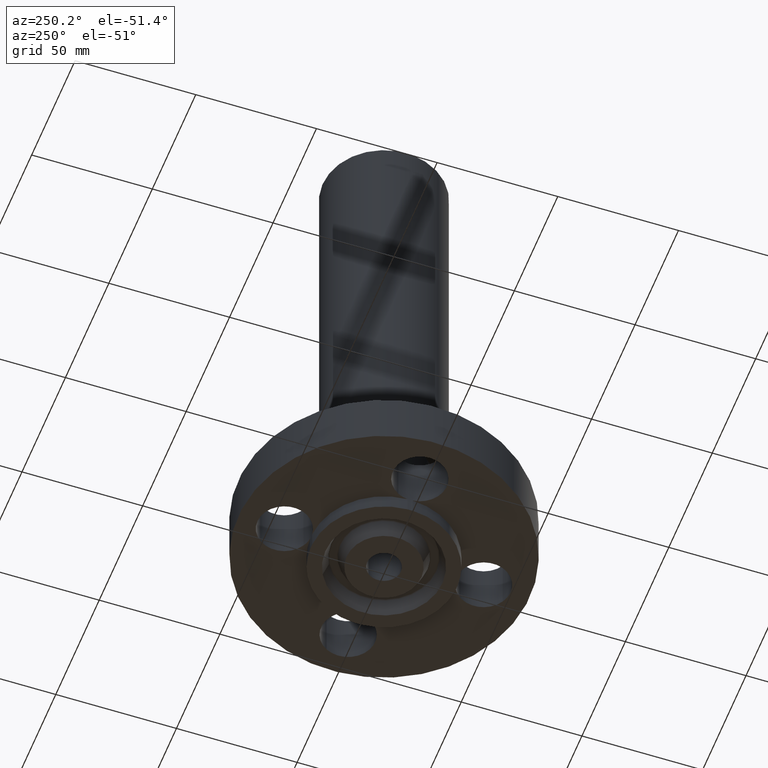
[diagram: clean part render]
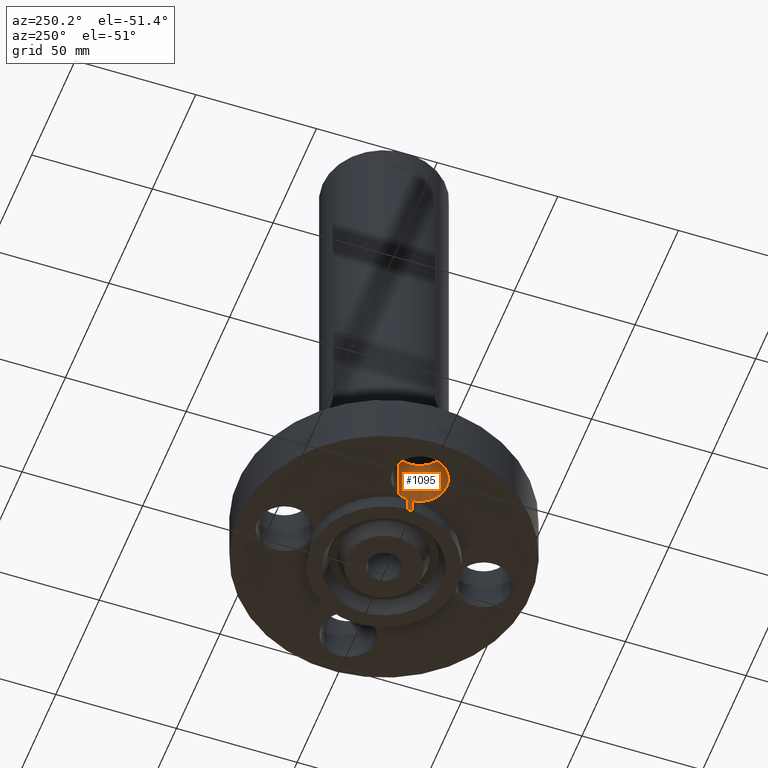
[diagram: same view with one face highlighted and labeled with its STEP entity id]
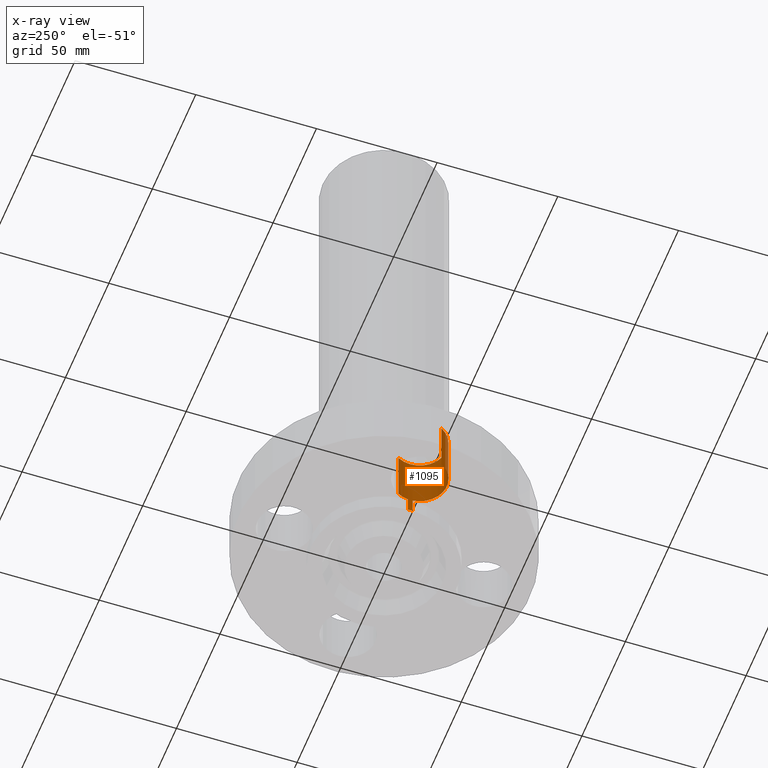
[diagram: x-ray of the same camera — body ghosted, the highlighted face saturated]
A machine part, auxiliary view. The second image highlights one B-rep face of the part: STEP entity #1095.
The next image is the same camera in x-ray: the body ghosted, the highlighted face saturated — about 0% of this face is hidden behind the body in this view.
In plain terms, the highlighted cylindrical surface (edge-blend (fillet) strip) has radius 11.176 mm, axis along (0, 0, 1).
Its self-contained STEP definition (entity closure, byte-faithful):
#198=AXIS2_PLACEMENT_3D('Circle Axis2P3D',#196,#197,$) ;
#212=AXIS2_PLACEMENT_3D('Circle Axis2P3D',#210,#211,$) ;
#337=AXIS2_PLACEMENT_3D('Circle Axis2P3D',#335,#336,$) ;
#1052=AXIS2_PLACEMENT_3D('Cylinder Axis2P3D',#1049,#1050,#1051) ;
#1082=AXIS2_PLACEMENT_3D('Circle Axis2P3D',#1080,#1081,$) ;
#104=CARTESIAN_POINT('Vertex',(-1.186825,-0.0400333532821,-3.2782175924E-018)) ;
#193=CARTESIAN_POINT('Vertex',(-1.186825,0.0400333532821,-3.2782175924E-018)) ;
#196=CARTESIAN_POINT('Axis2P3D Location',(-1.62500000001,-1.39870617276E-016,0.)) ;
#200=CARTESIAN_POINT('Vertex',(-1.23886367277,0.210947236987,0.)) ;
#207=CARTESIAN_POINT('Vertex',(-2.01113632724,-0.210947236987,2.2401153548E-016)) ;
#210=CARTESIAN_POINT('Axis2P3D Location',(-1.62500000001,-1.39870617276E-016,0.)) ;
#332=CARTESIAN_POINT('Vertex',(-1.186825,-0.0400333532821,-0.250000000001)) ;
#335=CARTESIAN_POINT('Axis2P3D Location',(-1.62500000001,-1.39870617276E-016,-0.250000000001)) ;
#339=CARTESIAN_POINT('Vertex',(-1.186825,0.0400333532821,-0.250000000001)) ;
#949=CARTESIAN_POINT('Line Origine',(-1.186825,-0.0400333532821,-0.125000000001)) ;
#961=CARTESIAN_POINT('Line Origine',(-1.186825,0.0400333532821,-0.125000000001)) ;
#1049=CARTESIAN_POINT('Axis2P3D Location',(-1.62500000001,-1.99005104862E-016,0.00393700787402)) ;
#1054=CARTESIAN_POINT('Line Origine',(-1.23886367277,0.210947236987,0.315000000001)) ;
#1058=CARTESIAN_POINT('Vertex',(-1.23886367277,0.210947236987,0.880000000004)) ;
#1065=CARTESIAN_POINT('Vertex',(-2.01113632724,-0.210947236987,0.880000000004)) ;
#1068=CARTESIAN_POINT('Line Origine',(-2.01113632724,-0.210947236987,0.315000000001)) ;
#1080=CARTESIAN_POINT('Axis2P3D Location',(-1.62500000001,-1.99005104862E-016,0.880000000004)) ;
#197=DIRECTION('Axis2P3D Direction',(0.,0.,-0.0393700787402)) ;
#211=DIRECTION('Axis2P3D Direction',(0.,0.,-0.0393700787402)) ;
#336=DIRECTION('Axis2P3D Direction',(0.,0.,-0.0393700787402)) ;
#950=DIRECTION('Vector Direction',(0.,0.,-0.0393700787402)) ;
#962=DIRECTION('Vector Direction',(0.,0.,-0.0393700787402)) ;
#1050=DIRECTION('Axis2P3D Direction',(0.,0.,0.0393700787402)) ;
#1051=DIRECTION('Axis2P3D XDirection',(-0.0345504945626,-0.0188750212049,0.)) ;
#1055=DIRECTION('Vector Direction',(0.,0.,0.0393700787402)) ;
#1069=DIRECTION('Vector Direction',(0.,0.,0.0393700787402)) ;
#1081=DIRECTION('Axis2P3D Direction',(0.,0.,0.0393700787402)) ;
#951=VECTOR('Line Direction',#950,0.0393700787402) ;
#963=VECTOR('Line Direction',#962,0.0393700787402) ;
#1056=VECTOR('Line Direction',#1055,0.0393700787402) ;
#1070=VECTOR('Line Direction',#1069,0.0393700787402) ;
#1086=ORIENTED_EDGE('',*,*,#1072,.F.) ;
#1087=ORIENTED_EDGE('',*,*,#1084,.F.) ;
#1088=ORIENTED_EDGE('',*,*,#1060,.T.) ;
#1089=ORIENTED_EDGE('',*,*,#202,.T.) ;
#1090=ORIENTED_EDGE('',*,*,#965,.T.) ;
#1091=ORIENTED_EDGE('',*,*,#341,.T.) ;
#1092=ORIENTED_EDGE('',*,*,#953,.F.) ;
#1093=ORIENTED_EDGE('',*,*,#214,.T.) ;
#1095=ADVANCED_FACE('PartBody',(#1094),#1053,.F.) ;
#199=CIRCLE('generated circle',#198,0.440000000002) ;
#213=CIRCLE('generated circle',#212,0.440000000002) ;
#338=CIRCLE('generated circle',#337,0.440000000002) ;
#1083=CIRCLE('generated circle',#1082,0.440000000002) ;
#1053=CYLINDRICAL_SURFACE('generated cylinder',#1052,0.440000000002) ;
#202=EDGE_CURVE('',#201,#194,#199,.T.) ;
#214=EDGE_CURVE('',#105,#208,#213,.T.) ;
#341=EDGE_CURVE('',#340,#333,#338,.T.) ;
#953=EDGE_CURVE('',#105,#333,#952,.T.) ;
#965=EDGE_CURVE('',#194,#340,#964,.T.) ;
#1060=EDGE_CURVE('',#1059,#201,#1057,.F.) ;
#1072=EDGE_CURVE('',#1066,#208,#1071,.F.) ;
#1084=EDGE_CURVE('',#1059,#1066,#1083,.F.) ;
#1085=EDGE_LOOP('',(#1086,#1087,#1088,#1089,#1090,#1091,#1092,#1093)) ;
#1094=FACE_OUTER_BOUND('',#1085,.T.) ;
#952=LINE('Line',#949,#951) ;
#964=LINE('Line',#961,#963) ;
#1057=LINE('Line',#1054,#1056) ;
#1071=LINE('Line',#1068,#1070) ;
#105=VERTEX_POINT('',#104) ;
#194=VERTEX_POINT('',#193) ;
#201=VERTEX_POINT('',#200) ;
#208=VERTEX_POINT('',#207) ;
#333=VERTEX_POINT('',#332) ;
#340=VERTEX_POINT('',#339) ;
#1059=VERTEX_POINT('',#1058) ;
#1066=VERTEX_POINT('',#1065) ;